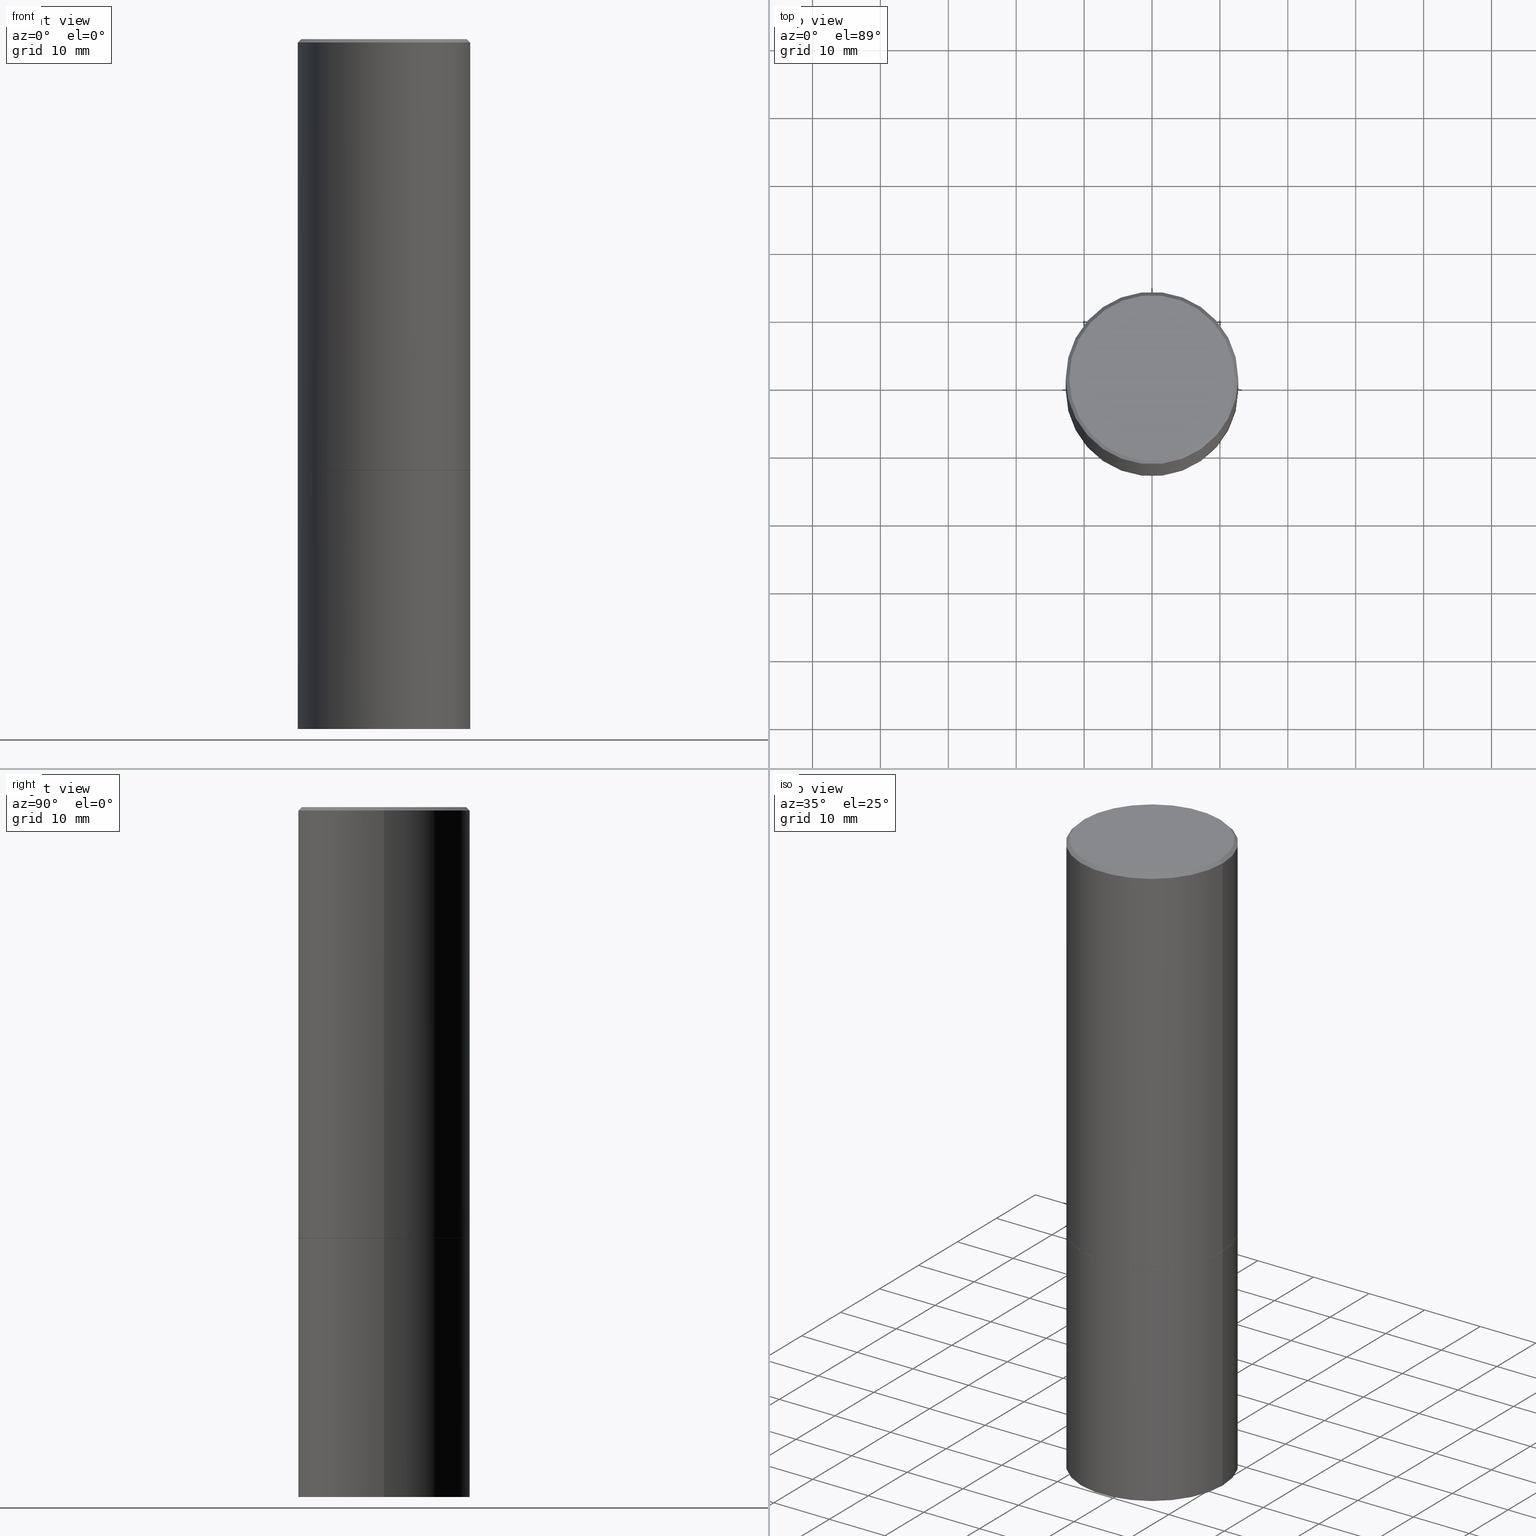
[diagram: canonical four-view strip — front | top / right | iso, engineering-drawing reading convention]
A machine part, canonical four-view strip (front | top / right | iso — engineering-drawing reading convention). The complete STEP part file that produces these views, byte-faithful:
ISO-10303-21;
HEADER;
FILE_DESCRIPTION (( 'STEP AP203' ),
    '1' );
FILE_NAME ('35497.STEP',
    '2024-02-27T18:55:55',
    ( '' ),
    ( '' ),
    'SwSTEP 2.0',
    'SolidWorks 2023',
    '' );
FILE_SCHEMA (( 'CONFIG_CONTROL_DESIGN' ));
ENDSEC;

DATA;
#1 = DIRECTION ( 'NONE',  ( 2.438088387897960049E-29, -3.491481338843145188E-15, -1.000000000000000000 ) ) ;
#2 = DIRECTION ( 'NONE',  ( 1.000000000000000000, 0.000000000000000000, 0.000000000000000000 ) ) ;
#3 = DIRECTION ( 'NONE',  ( -2.438088387897960049E-29, 3.491481338843145188E-15, 1.000000000000000000 ) ) ;
#4 = CIRCLE ( 'NONE', #192, 0.5000000000000000000 ) ;
#5 = CIRCLE ( 'NONE', #135, 0.4799999999999996492 ) ;
#6 = DATE_TIME_ROLE ( 'creation_date' ) ;
#7 = DIRECTION ( 'NONE',  ( 1.000000000000000000, -6.982962677686266711E-15, 4.876176775795935793E-29 ) ) ;
#8 = CARTESIAN_POINT ( 'NONE',  ( -3.131554243005659264E-46, 4.471029511141341874E-32, 1.280553747030123384E-17 ) ) ;
#9 = DIRECTION ( 'NONE',  ( 1.000000000000000000, -6.982962677686269077E-15, 0.000000000000000000 ) ) ;
#10 = EDGE_CURVE ( 'NONE', #282, #138, #4, .T. ) ;
#11 = LINE ( 'NONE', #267, #120 ) ;
#12 = CARTESIAN_POINT ( 'NONE',  ( 6.113672015462842613E-29, -8.728703347107864943E-15, -2.500000000000000000 ) ) ;
#13 = PERSON ( 'UNSPECIFIED', 'UNSPECIFIED', 'UNSPECIFIED', ('UNSPECIFIED'), ('UNSPECIFIED'), ('UNSPECIFIED') ) ;
#14 = EDGE_LOOP ( 'NONE', ( #364, #161, #45, #49 ) ) ;
#15 = CONICAL_SURFACE ( 'NONE', #78, 0.4999999999999997224, 0.7853981633974468357 ) ;
#16 = CYLINDRICAL_SURFACE ( 'NONE', #99, 0.4999999999999998335 ) ;
#17 = EDGE_LOOP ( 'NONE', ( #214, #243 ) ) ;
#18 = ADVANCED_FACE ( 'NONE', ( #52 ), #74, .F. ) ;
#19 = VECTOR ( 'NONE', #85, 39.37007874015748143 ) ;
#20 = LOCAL_TIME ( 13, 55, 55.00000000000000000, #315 ) ;
#21 = DIRECTION ( 'NONE',  ( -2.445468806185136877E-29, 3.491481338843145188E-15, 1.000000000000000000 ) ) ;
#22 = DIRECTION ( 'NONE',  ( 0.7071067811865464625, -7.319954787623252890E-15, -0.7071067811865485719 ) ) ;
#23 = ORIENTED_EDGE ( 'NONE', *, *, #296, .F. ) ;
#24 = EDGE_LOOP ( 'NONE', ( #356, #362, #359, #283 ) ) ;
#25 = EDGE_CURVE ( 'NONE', #138, #194, #304, .T. ) ;
#26 = ORIENTED_EDGE ( 'NONE', *, *, #230, .F. ) ;
#27 = COORDINATED_UNIVERSAL_TIME_OFFSET ( 5, 0, .BEHIND. ) ;
#28 = VERTEX_POINT ( 'NONE', #165 ) ;
#29 = APPROVAL_STATUS ( 'not_yet_approved' ) ;
#30 = DIRECTION ( 'NONE',  ( 1.000000000000000000, -6.982962677686267499E-15, 4.876036955247132767E-29 ) ) ;
#31 = CC_DESIGN_PERSON_AND_ORGANIZATION_ASSIGNMENT ( #51, #106, ( #246 ) ) ;
#32 = DATE_AND_TIME ( #131, #305 ) ;
#33 = CARTESIAN_POINT ( 'NONE',  ( 0.000000000000000000, 0.000000000000000000, 0.000000000000000000 ) ) ;
#34 = CIRCLE ( 'NONE', #61, 0.4999999999999997224 ) ;
#35 = CARTESIAN_POINT ( 'NONE',  ( -0.4989999999999999991, -5.177796641316744197E-15, -2.500000000000000444 ) ) ;
#36 = PLANE ( 'NONE',  #240 ) ;
#37 = APPLICATION_CONTEXT ( 'configuration controlled 3d designs of mechanical parts and assemblies' ) ;
#38 = CARTESIAN_POINT ( 'NONE',  ( 4.890937612370299433E-31, -6.982962677686328587E-17, -0.02000000000000010797 ) ) ;
#39 = DIRECTION ( 'NONE',  ( -2.445468806185136597E-29, 3.491481338843145583E-15, 1.000000000000000000 ) ) ;
#40 = ORIENTED_EDGE ( 'NONE', *, *, #10, .T. ) ;
#41 = EDGE_CURVE ( 'NONE', #282, #163, #127, .T. ) ;
#42 = MANIFOLD_SOLID_BREP ( 'Body-Move/Copy2[1]', #142 ) ;
#43 = FACE_OUTER_BOUND ( 'NONE', #94, .T. ) ;
#44 = CIRCLE ( 'NONE', #266, 0.5000000000000000000 ) ;
#45 = ORIENTED_EDGE ( 'NONE', *, *, #263, .T. ) ;
#46 = ORGANIZATION ( 'UNSPECIFIED', 'UNSPECIFIED', '' ) ;
#47 = ORIENTED_EDGE ( 'NONE', *, *, #311, .T. ) ;
#48 = DIRECTION ( 'NONE',  ( -0.7071067811865464625, 2.468850131082245622E-15, -0.7071067811865485719 ) ) ;
#49 = ORIENTED_EDGE ( 'NONE', *, *, #353, .F. ) ;
#50 = EDGE_CURVE ( 'NONE', #194, #163, #328, .T. ) ;
#51 = PERSON_AND_ORGANIZATION ( #13, #46 ) ;
#52 = FACE_OUTER_BOUND ( 'NONE', #335, .T. ) ;
#53 = ORIENTED_EDGE ( 'NONE', *, *, #113, .F. ) ;
#54 = DIRECTION ( 'NONE',  ( -1.000000000000000000, 6.982962677686265922E-15, -4.876176775795935793E-29 ) ) ;
#55 = FACE_OUTER_BOUND ( 'NONE', #24, .T. ) ;
#56 = FACE_OUTER_BOUND ( 'NONE', #95, .T. ) ;
#57 = CIRCLE ( 'NONE', #108, 0.5000000000000000000 ) ;
#58 = FACE_OUTER_BOUND ( 'NONE', #97, .T. ) ;
#59 = CARTESIAN_POINT ( 'NONE',  ( 3.351822085289405181E-15, 0.4799999999999996492, -1.669508273909558064E-15 ) ) ;
#60 = CARTESIAN_POINT ( 'NONE',  ( 0.4799999999999996492, -3.396558832296480127E-15, 1.280553747032483033E-17 ) ) ;
#61 = AXIS2_PLACEMENT_3D ( 'NONE', #298, #186, #238 ) ;
#62 = CARTESIAN_POINT ( 'NONE',  ( 6.111226546656657010E-29, -8.725211865769021935E-15, -2.499000000000000110 ) ) ;
#63 = PRODUCT_DEFINITION ( 'UNKNOWN', '', #277, #279 ) ;
#64 = DIRECTION ( 'NONE',  ( -2.445468806185136597E-29, 3.491481338843145583E-15, 1.000000000000000000 ) ) ;
#65 = DIRECTION ( 'NONE',  ( 1.000000000000000000, -6.982962677686266711E-15, 0.000000000000000000 ) ) ;
#66 = VECTOR ( 'NONE', #48, 39.37007874015748143 ) ;
#67 = ORIENTED_EDGE ( 'NONE', *, *, #327, .F. ) ;
#68 = ORIENTED_EDGE ( 'NONE', *, *, #296, .T. ) ;
#69 = CARTESIAN_POINT ( 'NONE',  ( 0.5000000000000000000, -1.222018468595099830E-14, -2.500000000000000000 ) ) ;
#70 = LOCAL_TIME ( 13, 55, 55.00000000000000000, #338 ) ;
#71 = ORIENTED_EDGE ( 'NONE', *, *, #291, .F. ) ;
#72 = CC_DESIGN_PERSON_AND_ORGANIZATION_ASSIGNMENT ( #308, #281, ( #277 ) ) ;
#73 = DATE_AND_TIME ( #334, #100 ) ;
#74 = PLANE ( 'NONE',  #300 ) ;
#75 = ORIENTED_EDGE ( 'NONE', *, *, #50, .F. ) ;
#76 = CALENDAR_DATE ( 2024, 27, 2 ) ;
#77 = EDGE_CURVE ( 'NONE', #248, #226, #188, .T. ) ;
#78 = AXIS2_PLACEMENT_3D ( 'NONE', #38, #292, #314 ) ;
#79 = CARTESIAN_POINT ( 'NONE',  ( 0.5000000000000000000, -1.745740669421571411E-14, -4.000000000000000000 ) ) ;
#80 = PERSON_AND_ORGANIZATION ( #13, #46 ) ;
#81 = FACE_OUTER_BOUND ( 'NONE', #250, .T. ) ;
#82 = DIRECTION ( 'NONE',  ( 1.000000000000000000, -6.982962677686266711E-15, 0.000000000000000000 ) ) ;
#83 = LINE ( 'NONE', #140, #313 ) ;
#84 = PRODUCT_RELATED_PRODUCT_CATEGORY ( 'detail', '', ( #155 ) ) ;
#85 = DIRECTION ( 'NONE',  ( -2.445468806185136877E-29, 3.491481338843145188E-15, 1.000000000000000000 ) ) ;
#86 = FACE_OUTER_BOUND ( 'NONE', #307, .T. ) ;
#87 = CC_DESIGN_PERSON_AND_ORGANIZATION_ASSIGNMENT ( #80, #171, ( #63 ) ) ;
#88 = DIRECTION ( 'NONE',  ( 1.000000000000000000, -6.982962677686266711E-15, 0.000000000000000000 ) ) ;
#89 = APPROVAL_PERSON_ORGANIZATION ( #310, #302, #336 ) ;
#90 = DIRECTION ( 'NONE',  ( 1.000000000000000000, -6.982962677686266711E-15, 0.000000000000000000 ) ) ;
#91 = CARTESIAN_POINT ( 'NONE',  ( -0.4999999999999997224, 3.421651712066268085E-15, -0.02000000000000010797 ) ) ;
#92 = AXIS2_PLACEMENT_3D ( 'NONE', #290, #115, #30 ) ;
#93 = AXIS2_PLACEMENT_3D ( 'NONE', #33, #144, #7 ) ;
#94 = EDGE_LOOP ( 'NONE', ( #329, #68, #199, #190 ) ) ;
#95 = EDGE_LOOP ( 'NONE', ( #67, #71 ) ) ;
#96 = CARTESIAN_POINT ( 'NONE',  ( -0.4989999999999999991, -5.183095095664967388E-15, -2.500000000000000444 ) ) ;
#97 = EDGE_LOOP ( 'NONE', ( #26, #53, #275, #333 ) ) ;
#98 = APPROVAL_DATE_TIME ( #259, #269 ) ;
#99 = AXIS2_PLACEMENT_3D ( 'NONE', #122, #182, #268 ) ;
#100 = LOCAL_TIME ( 13, 55, 55.00000000000000000, #227 ) ;
#101 = ORIENTED_EDGE ( 'NONE', *, *, #77, .T. ) ;
#102 = PERSON_AND_ORGANIZATION ( #13, #46 ) ;
#103 = VERTEX_POINT ( 'NONE', #235 ) ;
#104 = DIMENSIONAL_EXPONENTS ( 1.000000000000000000, 0.000000000000000000, 0.000000000000000000, 0.000000000000000000, 0.000000000000000000, 0.000000000000000000, 0.000000000000000000 ) ;
#105 = EDGE_CURVE ( 'NONE', #28, #282, #83, .T. ) ;
#106 = PERSON_AND_ORGANIZATION_ROLE ( 'classification_officer' ) ;
#107 = CARTESIAN_POINT ( 'NONE',  ( -0.4999999999999997224, 3.421651712066268085E-15, -0.02000000000000010797 ) ) ;
#108 = AXIS2_PLACEMENT_3D ( 'NONE', #179, #347, #9 ) ;
#109 = DIRECTION ( 'NONE',  ( 2.445468806185136597E-29, -3.491481338843145583E-15, -1.000000000000000000 ) ) ;
#110 = APPROVAL_PERSON_ORGANIZATION ( #167, #236, #284 ) ;
#111 = PERSON_AND_ORGANIZATION_ROLE ( 'design_owner' ) ;
#112 = DIRECTION ( 'NONE',  ( -2.445468806185136597E-29, 3.491481338843145583E-15, 1.000000000000000000 ) ) ;
#113 = EDGE_CURVE ( 'NONE', #226, #248, #5, .T. ) ;
#114 = DIRECTION ( 'NONE',  ( 1.000000000000000000, -6.982962677686266711E-15, 4.876176775795935793E-29 ) ) ;
#115 = DIRECTION ( 'NONE',  ( -2.445468806185136597E-29, 3.491481338843145583E-15, 1.000000000000000000 ) ) ;
#116 = APPLICATION_CONTEXT ( 'configuration controlled 3d designs of mechanical parts and assemblies' ) ;
#117 = AXIS2_PLACEMENT_3D ( 'NONE', #287, #3, #316 ) ;
#118 = CARTESIAN_POINT ( 'NONE',  ( 6.113672015462842613E-29, -8.728703347107866520E-15, -2.500000000000000444 ) ) ;
#119 = DIRECTION ( 'NONE',  ( -2.445468806185136597E-29, 3.491481338843145583E-15, 1.000000000000000000 ) ) ;
#120 = VECTOR ( 'NONE', #22, 39.37007874015748143 ) ;
#121 = CC_DESIGN_SECURITY_CLASSIFICATION ( #246, ( #277 ) ) ;
#122 = CARTESIAN_POINT ( 'NONE',  ( 0.000000000000000000, 0.000000000000000000, 0.000000000000000000 ) ) ;
#123 = ORIENTED_EDGE ( 'NONE', *, *, #105, .T. ) ;
#124 = EDGE_CURVE ( 'NONE', #103, #331, #57, .T. ) ;
#125 = ORIENTED_EDGE ( 'NONE', *, *, #124, .T. ) ;
#126 = AXIS2_PLACEMENT_3D ( 'NONE', #348, #210, #88 ) ;
#127 = LINE ( 'NONE', #280, #134 ) ;
#128 = EDGE_CURVE ( 'NONE', #255, #103, #146, .T. ) ;
#129 = DIRECTION ( 'NONE',  ( 1.000000000000000000, -6.982962677686266711E-15, 0.000000000000000000 ) ) ;
#130 = VERTEX_POINT ( 'NONE', #35 ) ;
#131 = CALENDAR_DATE ( 2024, 27, 2 ) ;
#132 = CARTESIAN_POINT ( 'NONE',  ( 3.491481338843194098E-15, 0.4999999999999912292, -2.500000000000001776 ) ) ;
#133 = APPROVAL_DATE_TIME ( #366, #236 ) ;
#134 = VECTOR ( 'NONE', #170, 39.37007874015748143 ) ;
#135 = AXIS2_PLACEMENT_3D ( 'NONE', #8, #201, #320 ) ;
#136 = ORIENTED_EDGE ( 'NONE', *, *, #244, .F. ) ;
#137 = APPROVAL_STATUS ( 'not_yet_approved' ) ;
#138 = VERTEX_POINT ( 'NONE', #206 ) ;
#139 = CALENDAR_DATE ( 2024, 27, 2 ) ;
#140 = CARTESIAN_POINT ( 'NONE',  ( 0.4989999999999999991, -1.221320172327331386E-14, -2.500000000000000444 ) ) ;
#141 = CARTESIAN_POINT ( 'NONE',  ( 0.000000000000000000, 0.000000000000000000, 0.000000000000000000 ) ) ;
#142 = CLOSED_SHELL ( 'NONE', ( #164, #207, #18, #225 ) ) ;
#143 = AXIS2_PLACEMENT_3D ( 'NONE', #352, #39, #90 ) ;
#144 = DIRECTION ( 'NONE',  ( -2.445468806185136597E-29, 3.491481338843145583E-15, 1.000000000000000000 ) ) ;
#145 = EDGE_CURVE ( 'NONE', #156, #331, #341, .T. ) ;
#146 = LINE ( 'NONE', #204, #19 ) ;
#147 = CYLINDRICAL_SURFACE ( 'NONE', #260, 0.4999999999999998335 ) ;
#148 = UNCERTAINTY_MEASURE_WITH_UNIT (LENGTH_MEASURE( 1.000000000000000082E-05 ), #295, 'distance_accuracy_value', 'NONE');
#149 = CARTESIAN_POINT ( 'NONE',  ( 3.491481338843230780E-15, 0.4999999999999860667, -4.000000000000001776 ) ) ;
#150 = AXIS2_PLACEMENT_3D ( 'NONE', #59, #234, #261 ) ;
#151 = ADVANCED_FACE ( 'NONE', ( #208 ), #228, .F. ) ;
#152 = CIRCLE ( 'NONE', #200, 0.5000000000000000000 ) ;
#153 = LINE ( 'NONE', #96, #221 ) ;
#154 = CARTESIAN_POINT ( 'NONE',  ( 9.781875224740546387E-29, -1.396592535537258233E-14, -4.000000000000000000 ) ) ;
#155 = PRODUCT ( '35497', '35497', '', ( #222 ) ) ;
#156 = VERTEX_POINT ( 'NONE', #79 ) ;
#157 = CARTESIAN_POINT ( 'NONE',  ( 6.113672015462842613E-29, -8.728703347107866520E-15, -2.500000000000000444 ) ) ;
#158 = EDGE_LOOP ( 'NONE', ( #47, #273, #285, #354 ) ) ;
#159 = AXIS2_PLACEMENT_3D ( 'NONE', #212, #64, #65 ) ;
#160 =( NAMED_UNIT ( * ) PLANE_ANGLE_UNIT ( ) SI_UNIT ( $, .RADIAN. ) );
#161 = ORIENTED_EDGE ( 'NONE', *, *, #230, .T. ) ;
#162 = EDGE_LOOP ( 'NONE', ( #40, #274, #358, #337 ) ) ;
#163 = VERTEX_POINT ( 'NONE', #181 ) ;
#164 = ADVANCED_FACE ( 'NONE', ( #178 ), #177, .T. ) ;
#165 = CARTESIAN_POINT ( 'NONE',  ( 0.4989999999999999991, -1.221320172327331386E-14, -2.500000000000000444 ) ) ;
#166 = ADVANCED_BREP_SHAPE_REPRESENTATION ( '35497', ( #42, #297, #276 ), #183 ) ;
#167 = PERSON_AND_ORGANIZATION ( #13, #46 ) ;
#168 = ORIENTED_EDGE ( 'NONE', *, *, #41, .T. ) ;
#169 = DATE_AND_TIME ( #360, #70 ) ;
#170 = DIRECTION ( 'NONE',  ( -2.445468806185136877E-29, 3.491481338843145188E-15, 1.000000000000000000 ) ) ;
#171 = PERSON_AND_ORGANIZATION_ROLE ( 'creator' ) ;
#172 = AXIS2_PLACEMENT_3D ( 'NONE', #157, #271, #325 ) ;
#173 = ORIENTED_EDGE ( 'NONE', *, *, #365, .T. ) ;
#174 = APPROVAL_DATE_TIME ( #32, #302 ) ;
#175 = PLANE ( 'NONE',  #117 ) ;
#176 = PERSON_AND_ORGANIZATION ( #13, #46 ) ;
#177 = CYLINDRICAL_SURFACE ( 'NONE', #346, 0.5000000000000000000 ) ;
#178 = FACE_OUTER_BOUND ( 'NONE', #158, .T. ) ;
#179 = CARTESIAN_POINT ( 'NONE',  ( 6.113672015462842613E-29, -8.728703347107864943E-15, -2.500000000000000000 ) ) ;
#180 = CC_DESIGN_DATE_AND_TIME_ASSIGNMENT ( #169, #288, ( #246 ) ) ;
#181 = CARTESIAN_POINT ( 'NONE',  ( 0.4999999999999997224, -3.500078625662627502E-15, -0.02000000000000010797 ) ) ;
#182 = DIRECTION ( 'NONE',  ( -2.445468806185136597E-29, 3.491481338843145583E-15, 1.000000000000000000 ) ) ;
#183 =( GEOMETRIC_REPRESENTATION_CONTEXT ( 3 ) GLOBAL_UNCERTAINTY_ASSIGNED_CONTEXT ( ( #148 ) ) GLOBAL_UNIT_ASSIGNED_CONTEXT ( ( #295, #160, #193 ) ) REPRESENTATION_CONTEXT ( 'NONE', 'WORKASPACE' ) );
#184 = CC_DESIGN_APPROVAL ( #236, ( #277 ) ) ;
#185 = CARTESIAN_POINT ( 'NONE',  ( -0.5000000000000000000, -7.794600672439723496E-15, -4.000000000000000000 ) ) ;
#186 = DIRECTION ( 'NONE',  ( -2.445468806185136597E-29, 3.491481338843145583E-15, 1.000000000000000000 ) ) ;
#187 = DIRECTION ( 'NONE',  ( -2.445468806185136597E-29, 3.491481338843145583E-15, 1.000000000000000000 ) ) ;
#188 = CIRCLE ( 'NONE', #92, 0.4799999999999996492 ) ;
#189 = CIRCLE ( 'NONE', #172, 0.4989999999999999991 ) ;
#190 = ORIENTED_EDGE ( 'NONE', *, *, #105, .F. ) ;
#191 = DIRECTION ( 'NONE',  ( 2.438088387897960049E-29, -3.491481338843145188E-15, -1.000000000000000000 ) ) ;
#192 = AXIS2_PLACEMENT_3D ( 'NONE', #218, #224, #303 ) ;
#193 =( NAMED_UNIT ( * ) SI_UNIT ( $, .STERADIAN. ) SOLID_ANGLE_UNIT ( ) );
#194 = VERTEX_POINT ( 'NONE', #107 ) ;
#195 = SECURITY_CLASSIFICATION_LEVEL ( 'unclassified' ) ;
#196 = DIRECTION ( 'NONE',  ( -1.000000000000000000, 6.982962677686265922E-15, -4.876176775795935793E-29 ) ) ;
#197 = ADVANCED_FACE ( 'NONE', ( #58 ), #245, .T. ) ;
#198 = DIRECTION ( 'NONE',  ( 0.000000000000000000, 0.000000000000000000, 1.000000000000000000 ) ) ;
#199 = ORIENTED_EDGE ( 'NONE', *, *, #10, .F. ) ;
#200 = AXIS2_PLACEMENT_3D ( 'NONE', #12, #322, #270 ) ;
#201 = DIRECTION ( 'NONE',  ( -2.445468806185136597E-29, 3.491481338843145583E-15, 1.000000000000000000 ) ) ;
#202 = APPROVAL_ROLE ( '' ) ;
#203 = ADVANCED_FACE ( 'NONE', ( #262 ), #15, .T. ) ;
#204 = CARTESIAN_POINT ( 'NONE',  ( -0.5000000000000000000, 3.552713678800500929E-15, -2.459467545127452891E-29 ) ) ;
#205 = DIRECTION ( 'NONE',  ( 0.7071067811864267805, -2.468850131080992517E-15, 0.7071067811866682540 ) ) ;
#206 = CARTESIAN_POINT ( 'NONE',  ( -0.5000000000000000000, -8.448070674724411945E-16, -2.499000000000000110 ) ) ;
#207 = ADVANCED_FACE ( 'NONE', ( #231 ), #36, .T. ) ;
#208 = FACE_OUTER_BOUND ( 'NONE', #217, .T. ) ;
#209 = VECTOR ( 'NONE', #344, 39.37007874015748143 ) ;
#210 = DIRECTION ( 'NONE',  ( -2.445468806185136597E-29, 3.491481338843145583E-15, 1.000000000000000000 ) ) ;
#211 = ADVANCED_FACE ( 'NONE', ( #81 ), #147, .T. ) ;
#212 = CARTESIAN_POINT ( 'NONE',  ( 6.113672015462842613E-29, -8.728703347107866520E-15, -2.500000000000000444 ) ) ;
#213 = ORIENTED_EDGE ( 'NONE', *, *, #25, .F. ) ;
#214 = ORIENTED_EDGE ( 'NONE', *, *, #311, .F. ) ;
#215 = AXIS2_PLACEMENT_3D ( 'NONE', #293, #109, #317 ) ;
#216 = ADVANCED_FACE ( 'NONE', ( #56 ), #175, .F. ) ;
#217 = EDGE_LOOP ( 'NONE', ( #309, #101 ) ) ;
#218 = CARTESIAN_POINT ( 'NONE',  ( 6.111226546656657010E-29, -8.725211865769021935E-15, -2.499000000000000110 ) ) ;
#219 = DIRECTION ( 'NONE',  ( -2.445468806185136597E-29, 3.491481338843145583E-15, 1.000000000000000000 ) ) ;
#220 = ORIENTED_EDGE ( 'NONE', *, *, #244, .T. ) ;
#221 = VECTOR ( 'NONE', #349, 39.37007874015748143 ) ;
#222 = MECHANICAL_CONTEXT ( 'NONE', #116, 'mechanical' ) ;
#223 = LOCAL_TIME ( 13, 55, 55.00000000000000000, #254 ) ;
#224 = DIRECTION ( 'NONE',  ( -2.445468806185136597E-29, 3.491481338843145583E-15, 1.000000000000000000 ) ) ;
#225 = ADVANCED_FACE ( 'NONE', ( #55 ), #289, .T. ) ;
#226 = VERTEX_POINT ( 'NONE', #299 ) ;
#227 = COORDINATED_UNIVERSAL_TIME_OFFSET ( 5, 0, .BEHIND. ) ;
#228 = PLANE ( 'NONE',  #150 ) ;
#229 = APPLICATION_PROTOCOL_DEFINITION ( 'international standard', 'config_control_design', 1994, #37 ) ;
#230 = EDGE_CURVE ( 'NONE', #248, #163, #11, .T. ) ;
#231 = FACE_OUTER_BOUND ( 'NONE', #17, .T. ) ;
#232 = SHAPE_DEFINITION_REPRESENTATION ( #324, #166 ) ;
#233 = CARTESIAN_POINT ( 'NONE',  ( 0.000000000000000000, 0.000000000000000000, 0.000000000000000000 ) ) ;
#234 = DIRECTION ( 'NONE',  ( 2.438088387897960049E-29, -3.491481338843145188E-15, -1.000000000000000000 ) ) ;
#235 = CARTESIAN_POINT ( 'NONE',  ( -0.5000000000000000000, -7.794600672439723496E-15, -2.500000000000000000 ) ) ;
#236 = APPROVAL ( #137, 'UNSPECIFIED' ) ;
#237 = DIRECTION ( 'NONE',  ( 1.000000000000000000, -6.982962677686265133E-15, 0.000000000000000000 ) ) ;
#238 = DIRECTION ( 'NONE',  ( 1.000000000000000000, -6.982962677686266711E-15, 0.000000000000000000 ) ) ;
#239 = CARTESIAN_POINT ( 'NONE',  ( 0.5000000000000000000, -1.221669320461215371E-14, -2.499000000000000110 ) ) ;
#240 = AXIS2_PLACEMENT_3D ( 'NONE', #149, #1, #54 ) ;
#241 = CC_DESIGN_APPROVAL ( #269, ( #246 ) ) ;
#242 =( LENGTH_UNIT ( ) NAMED_UNIT ( * ) SI_UNIT ( $, .METRE. ) );
#243 = ORIENTED_EDGE ( 'NONE', *, *, #357, .F. ) ;
#244 = EDGE_CURVE ( 'NONE', #138, #282, #44, .T. ) ;
#245 = CONICAL_SURFACE ( 'NONE', #215, 0.4999999999999997224, 0.7853981633974468357 ) ;
#246 = SECURITY_CLASSIFICATION ( '', '', #195 ) ;
#247 = CARTESIAN_POINT ( 'NONE',  ( -0.4999999999999998335, 3.552713678800499746E-15, -2.459467545127452330E-29 ) ) ;
#248 = VERTEX_POINT ( 'NONE', #60 ) ;
#249 = CC_DESIGN_PERSON_AND_ORGANIZATION_ASSIGNMENT ( #102, #363, ( #277 ) ) ;
#250 = EDGE_LOOP ( 'NONE', ( #213, #220, #168, #75 ) ) ;
#251 = CIRCLE ( 'NONE', #355, 0.4989999999999999991 ) ;
#252 = APPLICATION_PROTOCOL_DEFINITION ( 'international standard', 'config_control_design', 1994, #116 ) ;
#253 = CARTESIAN_POINT ( 'NONE',  ( 4.890937612370299433E-31, -6.982962677686328587E-17, -0.02000000000000010797 ) ) ;
#254 = COORDINATED_UNIVERSAL_TIME_OFFSET ( 5, 0, .BEHIND. ) ;
#255 = VERTEX_POINT ( 'NONE', #185 ) ;
#256 = CC_DESIGN_DATE_AND_TIME_ASSIGNMENT ( #73, #6, ( #63 ) ) ;
#257 = APPROVAL_STATUS ( 'not_yet_approved' ) ;
#258 = DIRECTION ( 'NONE',  ( 1.000000000000000000, -6.982962677686267499E-15, 4.876176775795936353E-29 ) ) ;
#259 = DATE_AND_TIME ( #139, #20 ) ;
#260 = AXIS2_PLACEMENT_3D ( 'NONE', #264, #112, #258 ) ;
#261 = DIRECTION ( 'NONE',  ( -1.000000000000000000, 6.982962677686265922E-15, -4.876176775795935793E-29 ) ) ;
#262 = FACE_OUTER_BOUND ( 'NONE', #14, .T. ) ;
#263 = EDGE_CURVE ( 'NONE', #163, #194, #34, .T. ) ;
#264 = CARTESIAN_POINT ( 'NONE',  ( 0.000000000000000000, 0.000000000000000000, 0.000000000000000000 ) ) ;
#265 = VECTOR ( 'NONE', #21, 39.37007874015748143 ) ;
#266 = AXIS2_PLACEMENT_3D ( 'NONE', #62, #119, #237 ) ;
#267 = CARTESIAN_POINT ( 'NONE',  ( 0.4999999999999997224, -3.500078625662627502E-15, -0.02000000000000010797 ) ) ;
#268 = DIRECTION ( 'NONE',  ( 1.000000000000000000, -6.982962677686267499E-15, 4.876176775795936353E-29 ) ) ;
#269 = APPROVAL ( #29, 'UNSPECIFIED' ) ;
#270 = DIRECTION ( 'NONE',  ( 1.000000000000000000, -6.982962677686269077E-15, 0.000000000000000000 ) ) ;
#271 = DIRECTION ( 'NONE',  ( -2.445468806185136597E-29, 3.491481338843145583E-15, 1.000000000000000000 ) ) ;
#272 = CONICAL_SURFACE ( 'NONE', #143, 0.4989999999999999991, 0.7853981633972775267 ) ;
#273 = ORIENTED_EDGE ( 'NONE', *, *, #128, .T. ) ;
#274 = ORIENTED_EDGE ( 'NONE', *, *, #25, .T. ) ;
#275 = ORIENTED_EDGE ( 'NONE', *, *, #353, .T. ) ;
#276 = AXIS2_PLACEMENT_3D ( 'NONE', #141, #198, #2 ) ;
#277 = PRODUCT_DEFINITION_FORMATION_WITH_SPECIFIED_SOURCE ( 'ANY', '', #155, .NOT_KNOWN. ) ;
#278 = LINE ( 'NONE', #91, #66 ) ;
#279 = DESIGN_CONTEXT ( 'detailed design', #37, 'design' ) ;
#280 = CARTESIAN_POINT ( 'NONE',  ( 0.4999999999999998335, -3.491481338843132566E-15, 2.438088387897967336E-29 ) ) ;
#281 = PERSON_AND_ORGANIZATION_ROLE ( 'creator' ) ;
#282 = VERTEX_POINT ( 'NONE', #239 ) ;
#283 = ORIENTED_EDGE ( 'NONE', *, *, #124, .F. ) ;
#284 = APPROVAL_ROLE ( '' ) ;
#285 = ORIENTED_EDGE ( 'NONE', *, *, #365, .F. ) ;
#286 = PERSON_AND_ORGANIZATION ( #13, #46 ) ;
#287 = CARTESIAN_POINT ( 'NONE',  ( 6.113672015462842613E-29, -8.728703347107864943E-15, -2.500000000000000000 ) ) ;
#288 = DATE_TIME_ROLE ( 'classification_date' ) ;
#289 = CYLINDRICAL_SURFACE ( 'NONE', #93, 0.5000000000000000000 ) ;
#290 = CARTESIAN_POINT ( 'NONE',  ( -3.131554243005659264E-46, 4.471029511141341874E-32, 1.280553747030123384E-17 ) ) ;
#291 = EDGE_CURVE ( 'NONE', #130, #28, #251, .T. ) ;
#292 = DIRECTION ( 'NONE',  ( 2.445468806185136597E-29, -3.491481338843145583E-15, -1.000000000000000000 ) ) ;
#293 = CARTESIAN_POINT ( 'NONE',  ( 4.890937612370299433E-31, -6.982962677686328587E-17, -0.02000000000000010797 ) ) ;
#294 = CIRCLE ( 'NONE', #340, 0.5000000000000000000 ) ;
#295 =( CONVERSION_BASED_UNIT ( 'INCH', #326 ) LENGTH_UNIT ( ) NAMED_UNIT ( #104 ) );
#296 = EDGE_CURVE ( 'NONE', #130, #138, #153, .T. ) ;
#297 = MANIFOLD_SOLID_BREP ( 'Body-Move/Copy2[2]', #361 ) ;
#298 = CARTESIAN_POINT ( 'NONE',  ( 4.890937612370299433E-31, -6.982962677686328587E-17, -0.02000000000000010797 ) ) ;
#299 = CARTESIAN_POINT ( 'NONE',  ( -0.4799999999999996492, 3.386736898677836830E-15, 1.280553747027767124E-17 ) ) ;
#300 = AXIS2_PLACEMENT_3D ( 'NONE', #132, #191, #196 ) ;
#301 = CIRCLE ( 'NONE', #126, 0.5000000000000000000 ) ;
#302 = APPROVAL ( #257, 'UNSPECIFIED' ) ;
#303 = DIRECTION ( 'NONE',  ( 1.000000000000000000, -6.982962677686265133E-15, 0.000000000000000000 ) ) ;
#304 = LINE ( 'NONE', #247, #265 ) ;
#305 = LOCAL_TIME ( 13, 55, 55.00000000000000000, #27 ) ;
#306 = ADVANCED_FACE ( 'NONE', ( #43 ), #272, .T. ) ;
#307 = EDGE_LOOP ( 'NONE', ( #23, #312, #123, #136 ) ) ;
#308 = PERSON_AND_ORGANIZATION ( #13, #46 ) ;
#309 = ORIENTED_EDGE ( 'NONE', *, *, #113, .T. ) ;
#310 = PERSON_AND_ORGANIZATION ( #13, #46 ) ;
#311 = EDGE_CURVE ( 'NONE', #156, #255, #301, .T. ) ;
#312 = ORIENTED_EDGE ( 'NONE', *, *, #291, .T. ) ;
#313 = VECTOR ( 'NONE', #205, 39.37007874015748143 ) ;
#314 = DIRECTION ( 'NONE',  ( -1.000000000000000000, 6.982962677686266711E-15, 0.000000000000000000 ) ) ;
#315 = COORDINATED_UNIVERSAL_TIME_OFFSET ( 5, 0, .BEHIND. ) ;
#316 = DIRECTION ( 'NONE',  ( 1.000000000000000000, -6.982962677686265922E-15, 4.876176775795935793E-29 ) ) ;
#317 = DIRECTION ( 'NONE',  ( -1.000000000000000000, 6.982962677686266711E-15, 0.000000000000000000 ) ) ;
#318 = CONICAL_SURFACE ( 'NONE', #159, 0.4989999999999999991, 0.7853981633972775267 ) ;
#319 = CARTESIAN_POINT ( 'NONE',  ( 0.5000000000000000000, -3.491481338843133355E-15, 2.438088387897967896E-29 ) ) ;
#320 = DIRECTION ( 'NONE',  ( 1.000000000000000000, -6.982962677686267499E-15, 4.876036955247132767E-29 ) ) ;
#321 = CC_DESIGN_PERSON_AND_ORGANIZATION_ASSIGNMENT ( #176, #111, ( #155 ) ) ;
#322 = DIRECTION ( 'NONE',  ( -2.445468806185136597E-29, 3.491481338843145583E-15, 1.000000000000000000 ) ) ;
#323 = APPROVAL_PERSON_ORGANIZATION ( #286, #269, #202 ) ;
#324 = PRODUCT_DEFINITION_SHAPE ( 'NONE', 'NONE',  #63 ) ;
#325 = DIRECTION ( 'NONE',  ( 1.000000000000000000, -6.982962677686266711E-15, 0.000000000000000000 ) ) ;
#326 = LENGTH_MEASURE_WITH_UNIT ( LENGTH_MEASURE( 0.02539999999999999897 ), #242 );
#327 = EDGE_CURVE ( 'NONE', #28, #130, #189, .T. ) ;
#328 = CIRCLE ( 'NONE', #345, 0.4999999999999997224 ) ;
#329 = ORIENTED_EDGE ( 'NONE', *, *, #327, .T. ) ;
#330 = ADVANCED_FACE ( 'NONE', ( #332 ), #16, .T. ) ;
#331 = VERTEX_POINT ( 'NONE', #69 ) ;
#332 = FACE_OUTER_BOUND ( 'NONE', #162, .T. ) ;
#333 = ORIENTED_EDGE ( 'NONE', *, *, #50, .T. ) ;
#334 = CALENDAR_DATE ( 2024, 27, 2 ) ;
#335 = EDGE_LOOP ( 'NONE', ( #173, #125 ) ) ;
#336 = APPROVAL_ROLE ( '' ) ;
#337 = ORIENTED_EDGE ( 'NONE', *, *, #41, .F. ) ;
#338 = COORDINATED_UNIVERSAL_TIME_OFFSET ( 5, 0, .BEHIND. ) ;
#339 = DIRECTION ( 'NONE',  ( -2.445468806185136597E-29, 3.491481338843145583E-15, 1.000000000000000000 ) ) ;
#340 = AXIS2_PLACEMENT_3D ( 'NONE', #154, #187, #129 ) ;
#341 = LINE ( 'NONE', #319, #209 ) ;
#342 = ADVANCED_FACE ( 'NONE', ( #86 ), #318, .T. ) ;
#343 = DIRECTION ( 'NONE',  ( -2.445468806185136597E-29, 3.491481338843145583E-15, 1.000000000000000000 ) ) ;
#344 = DIRECTION ( 'NONE',  ( -2.445468806185136877E-29, 3.491481338843145188E-15, 1.000000000000000000 ) ) ;
#345 = AXIS2_PLACEMENT_3D ( 'NONE', #253, #343, #82 ) ;
#346 = AXIS2_PLACEMENT_3D ( 'NONE', #233, #339, #114 ) ;
#347 = DIRECTION ( 'NONE',  ( -2.445468806185136597E-29, 3.491481338843145583E-15, 1.000000000000000000 ) ) ;
#348 = CARTESIAN_POINT ( 'NONE',  ( 9.781875224740546387E-29, -1.396592535537258233E-14, -4.000000000000000000 ) ) ;
#349 = DIRECTION ( 'NONE',  ( -0.7071067811864267805, 7.493145998869918709E-15, 0.7071067811866682540 ) ) ;
#350 = CC_DESIGN_APPROVAL ( #302, ( #63 ) ) ;
#351 = DIRECTION ( 'NONE',  ( 1.000000000000000000, -6.982962677686266711E-15, 0.000000000000000000 ) ) ;
#352 = CARTESIAN_POINT ( 'NONE',  ( 6.113672015462842613E-29, -8.728703347107866520E-15, -2.500000000000000444 ) ) ;
#353 = EDGE_CURVE ( 'NONE', #226, #194, #278, .T. ) ;
#354 = ORIENTED_EDGE ( 'NONE', *, *, #145, .F. ) ;
#355 = AXIS2_PLACEMENT_3D ( 'NONE', #118, #219, #351 ) ;
#356 = ORIENTED_EDGE ( 'NONE', *, *, #128, .F. ) ;
#357 = EDGE_CURVE ( 'NONE', #255, #156, #294, .T. ) ;
#358 = ORIENTED_EDGE ( 'NONE', *, *, #263, .F. ) ;
#359 = ORIENTED_EDGE ( 'NONE', *, *, #145, .T. ) ;
#360 = CALENDAR_DATE ( 2024, 27, 2 ) ;
#361 = CLOSED_SHELL ( 'NONE', ( #306, #330, #203, #197, #211, #342, #216, #151 ) ) ;
#362 = ORIENTED_EDGE ( 'NONE', *, *, #357, .T. ) ;
#363 = PERSON_AND_ORGANIZATION_ROLE ( 'design_supplier' ) ;
#364 = ORIENTED_EDGE ( 'NONE', *, *, #77, .F. ) ;
#365 = EDGE_CURVE ( 'NONE', #331, #103, #152, .T. ) ;
#366 = DATE_AND_TIME ( #76, #223 ) ;
ENDSEC;
END-ISO-10303-21;
